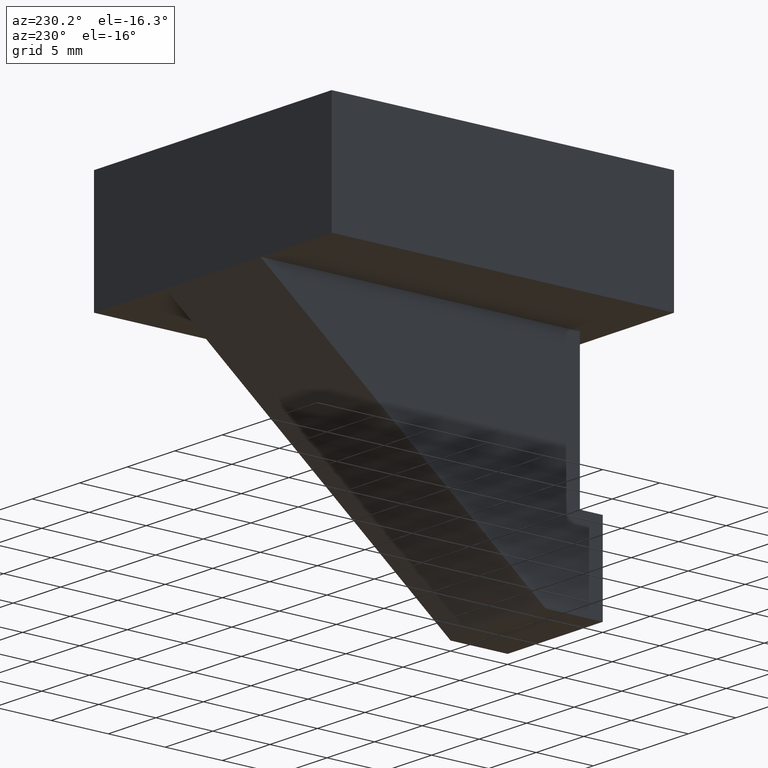
[diagram: clean part render]
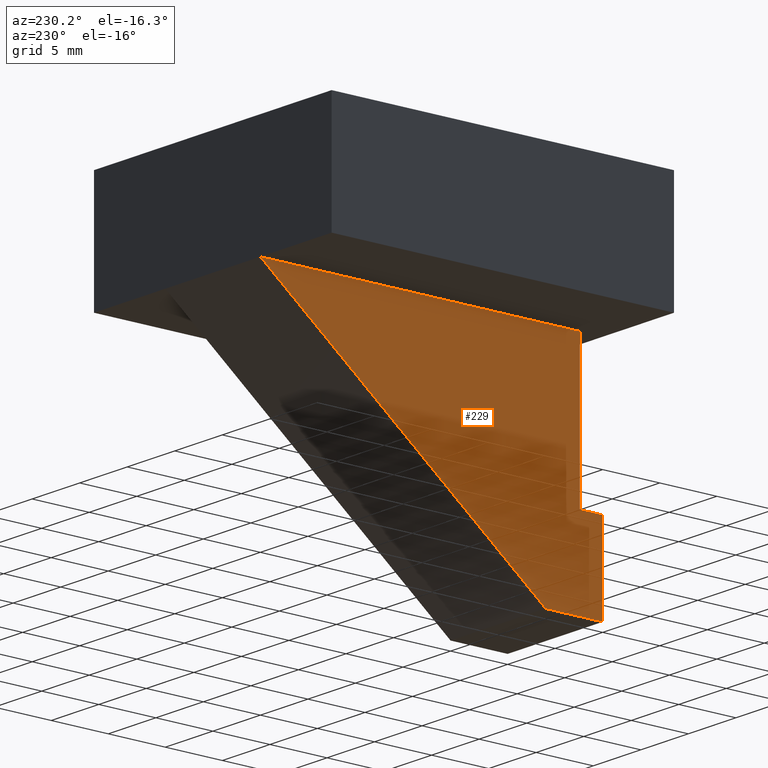
[diagram: same view with one face highlighted and labeled with its STEP entity id]
A machine part, auxiliary view. The second image highlights one B-rep face of the part: STEP entity #229.
In plain terms, the highlighted planar face has unit normal (-1, 0, 0).
Its self-contained STEP definition (entity closure, byte-faithful):
#15=FACE_OUTER_BOUND('',#28,.T.);
#28=EDGE_LOOP('',(#154,#155,#156,#157,#158,#159));
#41=LINE('',#341,#72);
#42=LINE('',#343,#73);
#43=LINE('',#345,#74);
#44=LINE('',#347,#75);
#45=LINE('',#349,#76);
#46=LINE('',#350,#77);
#72=VECTOR('',#282,10.);
#73=VECTOR('',#283,10.);
#74=VECTOR('',#284,10.);
#75=VECTOR('',#285,10.);
#76=VECTOR('',#286,10.);
#77=VECTOR('',#287,10.);
#103=VERTEX_POINT('',#339);
#104=VERTEX_POINT('',#340);
#105=VERTEX_POINT('',#342);
#106=VERTEX_POINT('',#344);
#107=VERTEX_POINT('',#346);
#108=VERTEX_POINT('',#348);
#123=EDGE_CURVE('',#103,#104,#41,.T.);
#124=EDGE_CURVE('',#104,#105,#42,.T.);
#125=EDGE_CURVE('',#105,#106,#43,.T.);
#126=EDGE_CURVE('',#107,#106,#44,.T.);
#127=EDGE_CURVE('',#107,#108,#45,.T.);
#128=EDGE_CURVE('',#108,#103,#46,.T.);
#154=ORIENTED_EDGE('',*,*,#123,.T.);
#155=ORIENTED_EDGE('',*,*,#124,.T.);
#156=ORIENTED_EDGE('',*,*,#125,.T.);
#157=ORIENTED_EDGE('',*,*,#126,.F.);
#158=ORIENTED_EDGE('',*,*,#127,.T.);
#159=ORIENTED_EDGE('',*,*,#128,.T.);
#216=PLANE('',#265);
#229=ADVANCED_FACE('',(#15),#216,.T.);
#265=AXIS2_PLACEMENT_3D('',#338,#280,#281);
#280=DIRECTION('center_axis',(-1.,0.,0.));
#281=DIRECTION('ref_axis',(0.,0.,1.));
#282=DIRECTION('',(0.,0.,1.));
#283=DIRECTION('',(0.,1.,0.));
#284=DIRECTION('',(0.,1.33226762955019E-16,1.));
#285=DIRECTION('',(0.,-1.,0.));
#286=DIRECTION('',(0.,-0.78086880944303,-0.624695047554424));
#287=DIRECTION('',(0.,-1.,0.));
#338=CARTESIAN_POINT('Origin',(-5.,15.,-10.));
#339=CARTESIAN_POINT('',(-5.,0.,-20.));
#340=CARTESIAN_POINT('',(-5.,0.,-12.5));
#341=CARTESIAN_POINT('',(-5.,0.,-12.5));
#342=CARTESIAN_POINT('',(-5.,2.,-12.5));
#343=CARTESIAN_POINT('',(-5.,2.,-12.5));
#344=CARTESIAN_POINT('',(-5.,2.,0.));
#345=CARTESIAN_POINT('',(-5.,2.,0.));
#346=CARTESIAN_POINT('',(-5.,30.,0.));
#347=CARTESIAN_POINT('',(-5.,7.5,0.));
#348=CARTESIAN_POINT('',(-5.,5.,-20.));
#349=CARTESIAN_POINT('',(-5.,5.,-20.));
#350=CARTESIAN_POINT('',(-5.,0.,-20.));